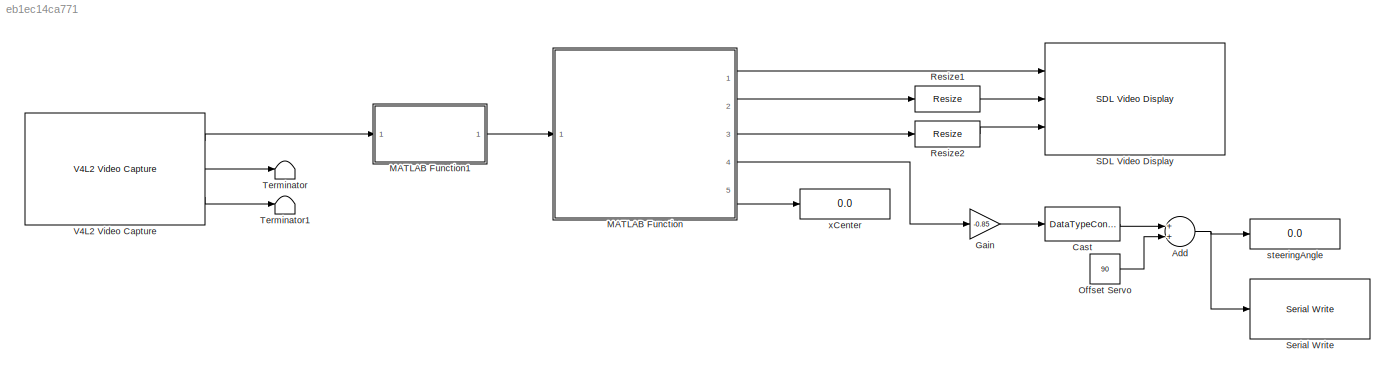
MODEL slx_eb1ec14ca771
KIND model
CONFIG AbsTol = auto
CONFIG EnableMultiTasking = on
CONFIG FixedStep = auto
CONFIG MaxStep = auto
CONFIG MinStep = auto
CONFIG RelTol = 1e-3
CONFIG SampleTimeConstraint = Unconstrained
CONFIG Solver = FixedStepAuto
CONFIG SolverName = FixedStepAuto
CONFIG StartTime = 0.0
CONFIG StopTime = inf
BLOCK [Sum] Add
  InputSameDT = off
  OutDataTypeStr = Inherit: Inherit via internal rule
  Ports = [2, 1]
  SaturateOnIntegerOverflow = off
BLOCK [DataTypeConversion] Cast
  LockScale = on
  OutDataTypeStr = int8
  RndMeth = Floor
  SaturateOnIntegerOverflow = off
BLOCK [Gain] Gain
  Gain = -0.85
  OutDataTypeStr = Inherit: Inherit via internal rule
  OutMax = 25
  OutMin = -25
  ParamDataTypeStr = Inherit: Inherit via internal rule
  SaturateOnIntegerOverflow = off
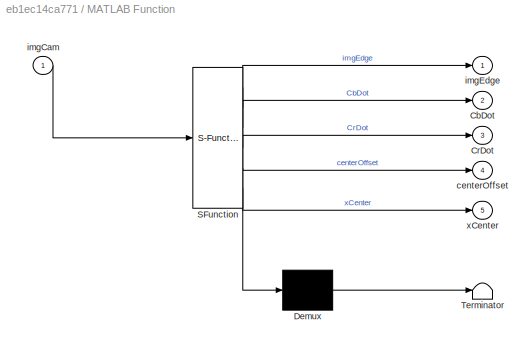
BLOCK [SubSystem] MATLAB Function
  ErrorFcn = Stateflow.Translate.translate
  PermitHierarchicalResolution = ExplicitOnly
  Ports = [1, 5]
  RequestExecContextInheritance = off
  SFBlockType = MATLAB Function
  TreatAsAtomicUnit = on
BLOCK [Demux] MATLAB Function/ Demux 
  Outputs = 1
  Ports = [1, 1]
BLOCK [S-Function] MATLAB Function/ SFunction 
  EnableBusSupport = on
  FunctionName = sf_sfun
  PortCounts = [1 6]
  Ports = [1, 6]
  SFcnIsStateOwnerBlock = off
  SFunctionDeploymentMode = off
  Tag = Stateflow S-Function lanedetection_Kopie 2
BLOCK [Terminator] MATLAB Function/ Terminator 
BLOCK [Outport] MATLAB Function/CbDot
  IconDisplay = Port number
  Port = 2
BLOCK [Outport] MATLAB Function/CrDot
  IconDisplay = Port number
  Port = 3
BLOCK [Outport] MATLAB Function/centerOffset
  IconDisplay = Port number
  Port = 4
BLOCK [Inport] MATLAB Function/imgCam 
  IconDisplay = Port number
BLOCK [Outport] MATLAB Function/imgEdge
  IconDisplay = Port number
BLOCK [Outport] MATLAB Function/xCenter
  IconDisplay = Port number
  Port = 5
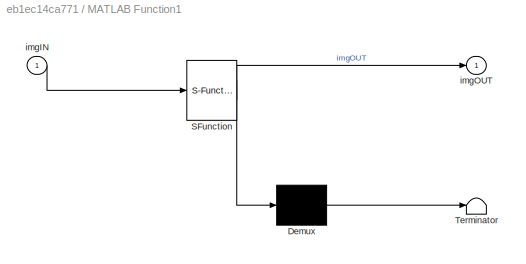
BLOCK [SubSystem] MATLAB Function1
  ErrorFcn = Stateflow.Translate.translate
  PermitHierarchicalResolution = ExplicitOnly
  Ports = [1, 1]
  RequestExecContextInheritance = off
  SFBlockType = MATLAB Function
  TreatAsAtomicUnit = on
BLOCK [Demux] MATLAB Function1/ Demux 
  Outputs = 1
  Ports = [1, 1]
BLOCK [S-Function] MATLAB Function1/ SFunction 
  EnableBusSupport = on
  FunctionName = sf_sfun
  PortCounts = [1 2]
  Ports = [1, 2]
  SFcnIsStateOwnerBlock = off
  SFunctionDeploymentMode = off
  Tag = Stateflow S-Function lanedetection_Kopie 1
BLOCK [Terminator] MATLAB Function1/ Terminator 
BLOCK [Inport] MATLAB Function1/imgIN
  IconDisplay = Port number
BLOCK [Outport] MATLAB Function1/imgOUT
  IconDisplay = Port number
BLOCK [Constant] Offset Servo
  OutDataTypeStr = int8
  Value = 90
BLOCK [Reference] Resize1  REF=visiongeotforms/Resize
  Ports = [1, 1]
  SourceBlock = visiongeotforms/Resize
  SourceProductBaseCode = VP
  SourceProductName = Computer Vision System Toolbox
  SourceType = Resize
BLOCK [Reference] Resize2  REF=visiongeotforms/Resize
  Ports = [1, 1]
  SourceBlock = visiongeotforms/Resize
  SourceProductBaseCode = VP
  SourceProductName = Computer Vision System Toolbox
  SourceType = Resize
BLOCK [Reference] SDL Video Display  REF=embdlinuxlib/SDL Video Display
  Ports = [3]
  SourceBlock = embdlinuxlib/SDL Video Display
  SourceProductBaseCode = RASPPI
  SourceProductName = Simulink Support Package for Raspberry Pi Hardware
  SourceType = SDL Video Display
BLOCK [Reference] Serial Write  REF=raspberrypilib/Serial Write
  Ports = [1]
  SourceBlock = raspberrypilib/Serial Write
  SourceProductBaseCode = RASPPI
  SourceProductName = Simulink Support Package for Raspberry Pi Hardware
  SourceType = Serial Write
BLOCK [Terminator] Terminator
BLOCK [Terminator] Terminator1
BLOCK [Reference] V4L2 Video Capture  REF=embdlinuxlib/V4L2 Video Capture
  Ports = [0, 3]
  SourceBlock = embdlinuxlib/V4L2 Video Capture
  SourceProductBaseCode = RASPPI
  SourceProductName = Simulink Support Package for Raspberry Pi Hardware
  SourceType = V4L2 Video Capture
BLOCK [Display] steeringAngle
  Decimation = 1
  Format = decimal (Stored Integer)
  Ports = [1]
BLOCK [Display] xCenter
  Decimation = 1
  Format = decimal (Stored Integer)
  Ports = [1]
NET Add:1 -> Serial Write:1, steeringAngle:1
LINE Cast:1 -> Add:1
LINE Gain:1 -> Cast:1
LINE MATLAB Function1:1 -> MATLAB Function:1
LINE MATLAB Function:1 -> SDL Video Display:1
LINE MATLAB Function:2 -> Resize1:1
LINE MATLAB Function:3 -> Resize2:1
LINE MATLAB Function:4 -> Gain:1
LINE MATLAB Function:5 -> xCenter:1
LINE Offset Servo:1 -> Add:2
LINE Resize1:1 -> SDL Video Display:2
LINE Resize2:1 -> SDL Video Display:3
LINE V4L2 Video Capture:1 -> MATLAB Function1:1
LINE V4L2 Video Capture:2 -> Terminator:1
LINE V4L2 Video Capture:3 -> Terminator1:1
note: NET lines group one-source signal fan-out (src -> all destinations, sorted); 1:1 wires keep LINE
CHART MATLAB Function1 states=1 transitions=1
  STATE_LABEL 'eML_blk_kernel()'
  STATE_LABEL "SCRIPT:\nfunction imgOUT   = imgROI(imgIN)\n\n    % imgIN Array von 160x120\n    % rectangle('Position',[x,y,w,h])\n    \n    imgOUT = imgIN(1:160,71:100);\n\nend"
CHART MATLAB Function states=1 transitions=1
  STATE_LABEL 'eML_blk_kernel()'
  STATE_LABEL "SCRIPT:\nfunction [imgEdge, CbDot, CrDot, centerOffset, xCenter]  = lanedetection(imgCam)\n\n    threshold = 60;\n\n    % create laplacian filter\n    k = [1 2 1; 0 0 0; -1 -2 -1];\n    % run sobel\n    V = conv2(double(imgCam), k', 'same');\n    % filter edges\n    imgEdges = uint8((V > threshold) * 255);\n    \n    % Ab hier für Spurberechnung irrelevant\n    \n    \n    \n    % coordinates of all detected obje...<+876ch>"
